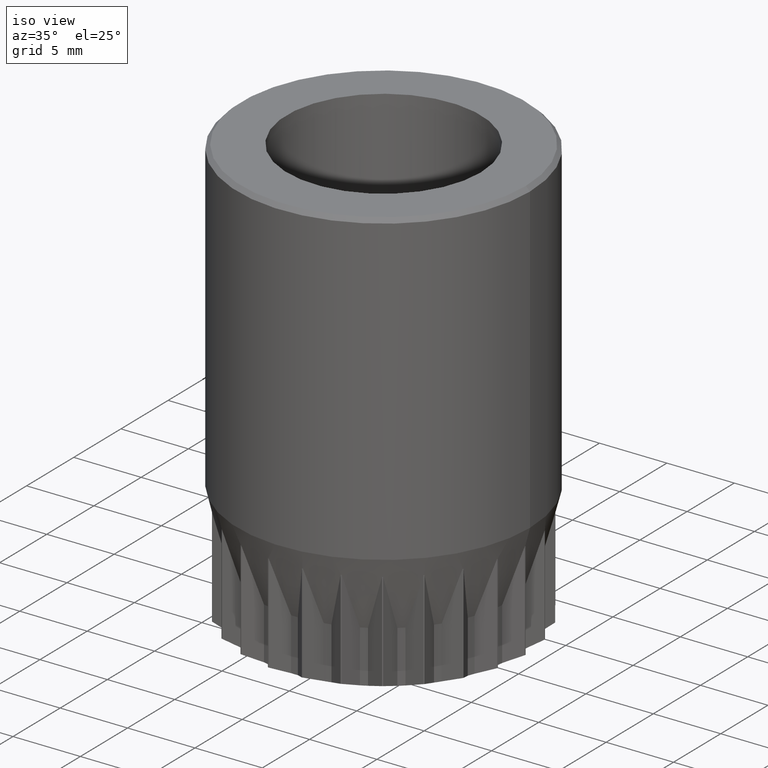
[diagram: clean part render]
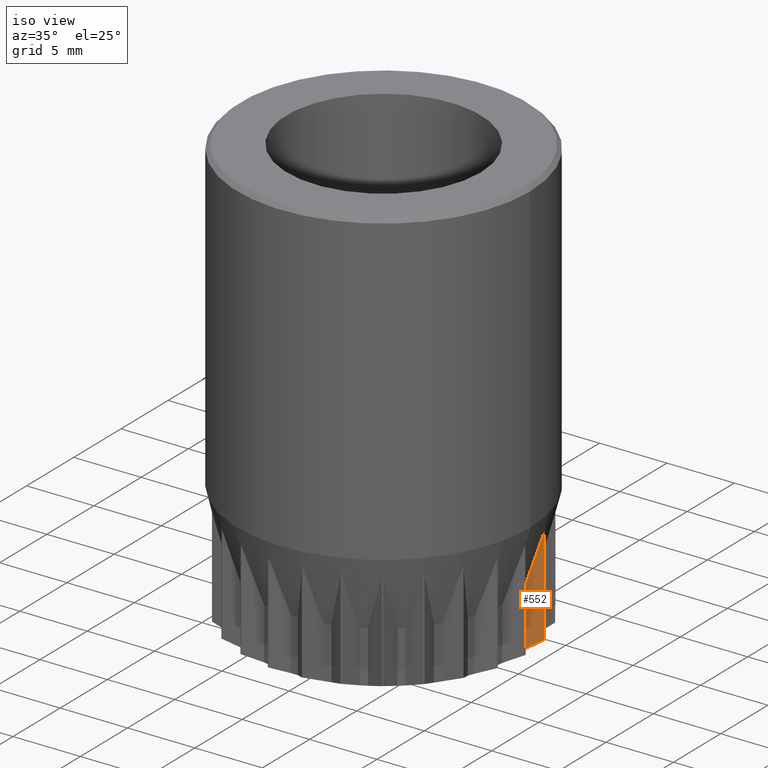
[diagram: same view with one face highlighted and labeled with its STEP entity id]
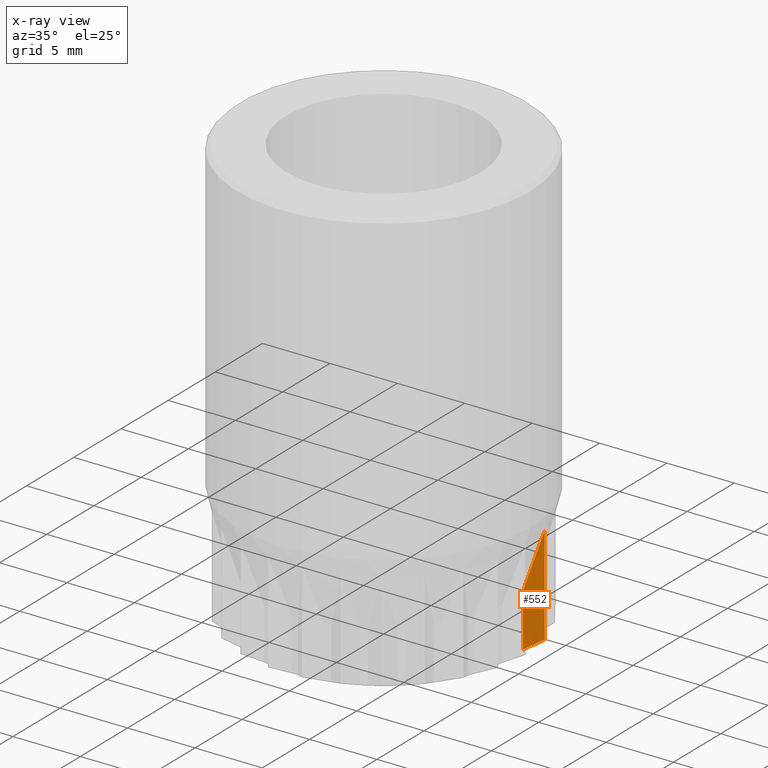
[diagram: x-ray of the same camera — body ghosted, the highlighted face saturated]
A machine part, iso view. The second image highlights one B-rep face of the part: STEP entity #552.
The next image is the same camera in x-ray: the body ghosted, the highlighted face saturated — about 0% of this face is hidden behind the body in this view.
In plain terms, the highlighted planar face has unit normal (0.7872, -0.6167, 0).
Its self-contained STEP definition (entity closure, byte-faithful):
#131=B_SPLINE_CURVE_WITH_KNOTS('',3,(#3380,#3381,#3382,#3383),.UNSPECIFIED.,
.F.,.F.,(4,4),(0.,1.),.UNSPECIFIED.);
#189=B_SPLINE_CURVE_WITH_KNOTS('',3,(#3787,#3788,#3789,#3790),.UNSPECIFIED.,
.F.,.F.,(4,4),(0.,1.),.UNSPECIFIED.);
#235=LINE('',#3108,#339);
#293=LINE('',#3792,#397);
#339=VECTOR('',#2535,1.);
#397=VECTOR('',#2867,1.);
#552=ADVANCED_FACE('',(#731),#620,.T.);
#620=PLANE('',#2365);
#731=FACE_OUTER_BOUND('',#849,.T.);
#849=EDGE_LOOP('',(#1310,#1311,#1312,#1313));
#1310=ORIENTED_EDGE('',*,*,#2021,.F.);
#1311=ORIENTED_EDGE('',*,*,#2022,.T.);
#1312=ORIENTED_EDGE('',*,*,#1899,.T.);
#1313=ORIENTED_EDGE('',*,*,#1806,.F.);
#1589=VERTEX_POINT('',#3107);
#1590=VERTEX_POINT('',#3109);
#1668=VERTEX_POINT('',#3384);
#1726=VERTEX_POINT('',#3791);
#1806=EDGE_CURVE('',#1589,#1590,#235,.T.);
#1899=EDGE_CURVE('',#1668,#1590,#131,.T.);
#2021=EDGE_CURVE('',#1726,#1589,#189,.T.);
#2022=EDGE_CURVE('',#1726,#1668,#293,.T.);
#2365=AXIS2_PLACEMENT_3D('',#3793,#2868,#2869);
#2535=DIRECTION('',(0.,0.,1.));
#2867=DIRECTION('',(0.,0.,1.));
#2868=DIRECTION('',(0.787183480609048,-0.616718872628546,0.));
#2869=DIRECTION('',(0.616718872628546,0.787183480609048,0.));
#3107=CARTESIAN_POINT('',(9.34768134814674,1.38685017704058,-31.756980377552));
#3108=CARTESIAN_POINT('',(9.34768134814674,1.38685017704058,-32.));
#3109=CARTESIAN_POINT('',(9.34768134814423,1.38685017704021,-27.8727406610313));
#3380=CARTESIAN_POINT('',(10.2032024947829,2.47884223992878,-23.9540873130839));
#3381=CARTESIAN_POINT('',(9.92718923559338,2.12653734428478,-25.265468630222));
#3382=CARTESIAN_POINT('',(9.64372398513704,1.76472068455919,-26.5728961879071));
#3383=CARTESIAN_POINT('',(9.34768134814423,1.38685017704021,-27.8727406610313));
#3384=CARTESIAN_POINT('',(10.2032024947829,2.47884223992878,-23.9540873130839));
#3787=CARTESIAN_POINT('',(10.2032024947829,2.47884223992878,-31.2673573364904));
#3788=CARTESIAN_POINT('',(9.91922067363174,2.11636622642409,-31.4359406505769));
#3789=CARTESIAN_POINT('',(9.63414496644164,1.75249397055079,-31.5998241477682));
#3790=CARTESIAN_POINT('',(9.34768134814674,1.38685017704058,-31.756980377552));
#3791=CARTESIAN_POINT('',(10.2032024947829,2.47884223992878,-31.2673573364904));
#3792=CARTESIAN_POINT('',(10.2032024947829,2.47884223992878,-32.));
#3793=CARTESIAN_POINT('',(9.34768134814458,1.38685017703783,-37.5));